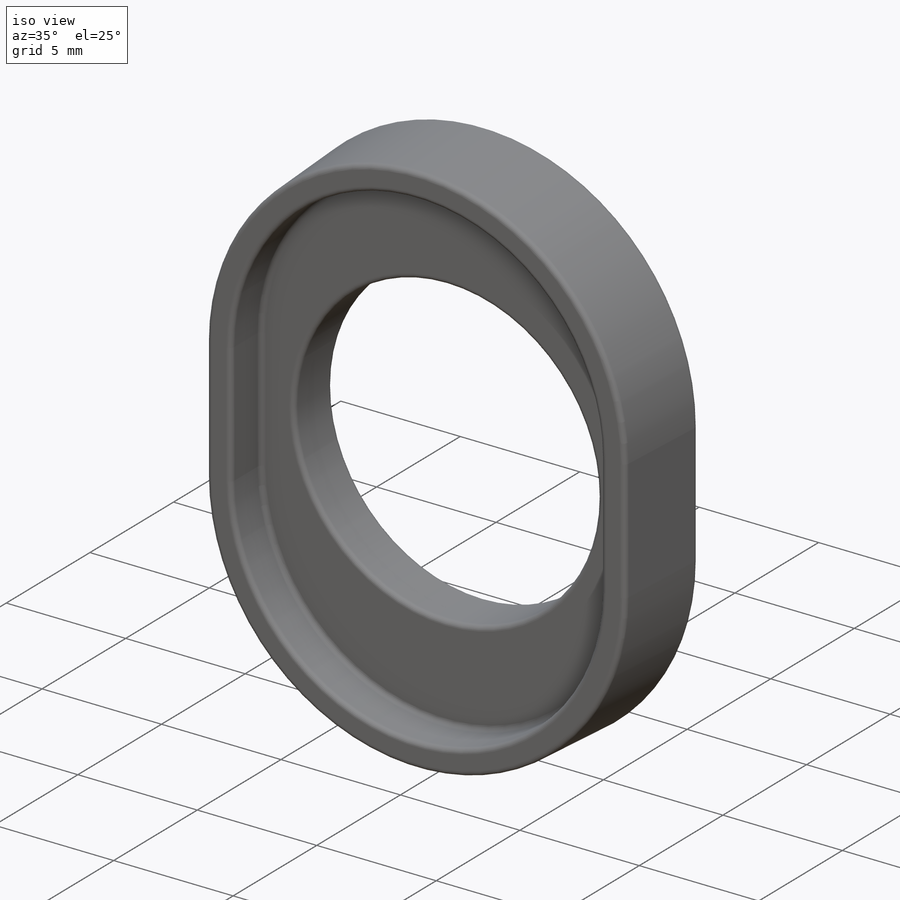
[diagram: iso view]
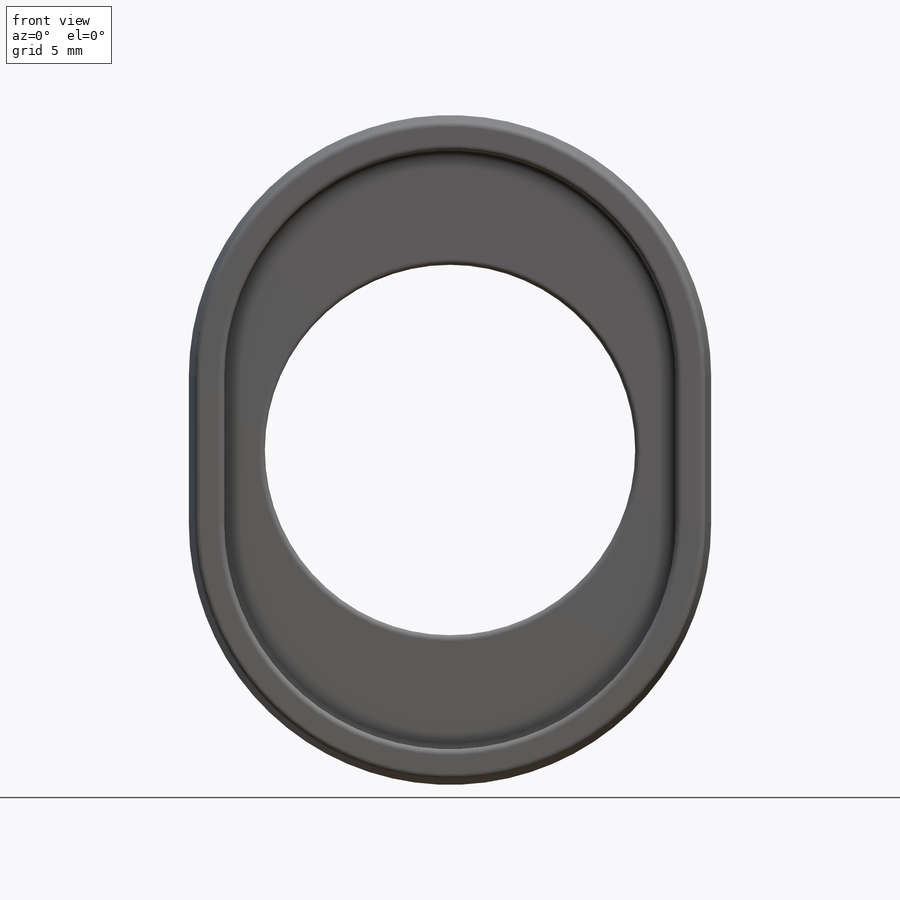
[diagram: front view]
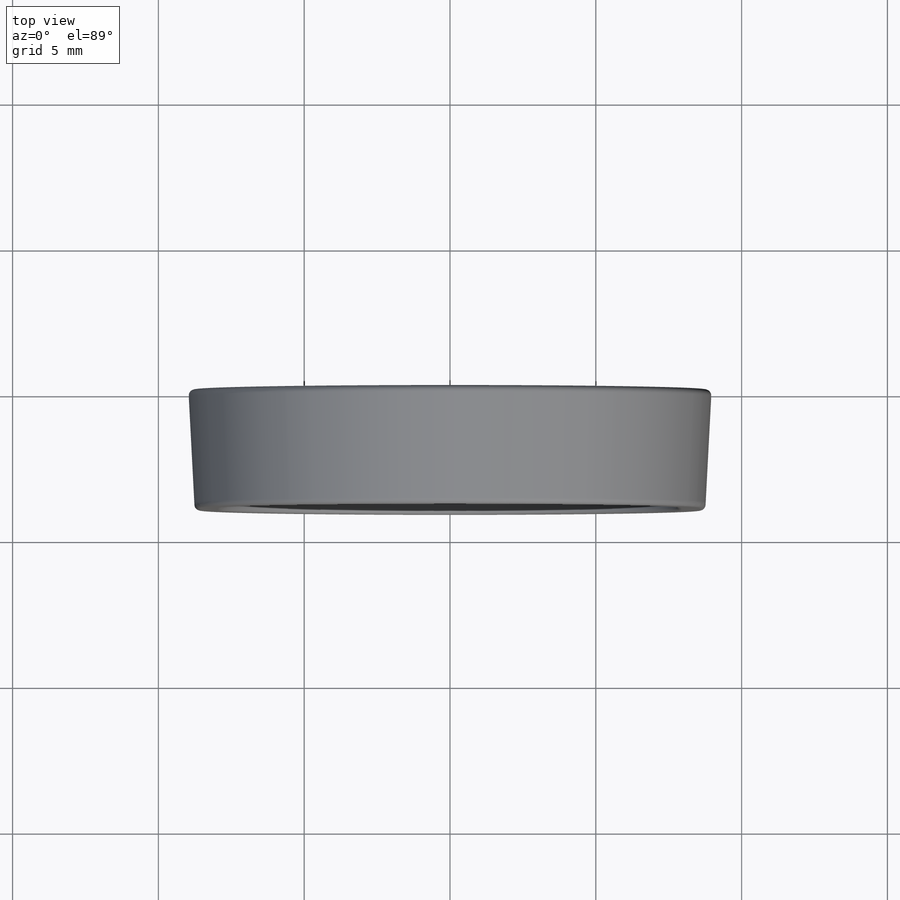
[diagram: top view]
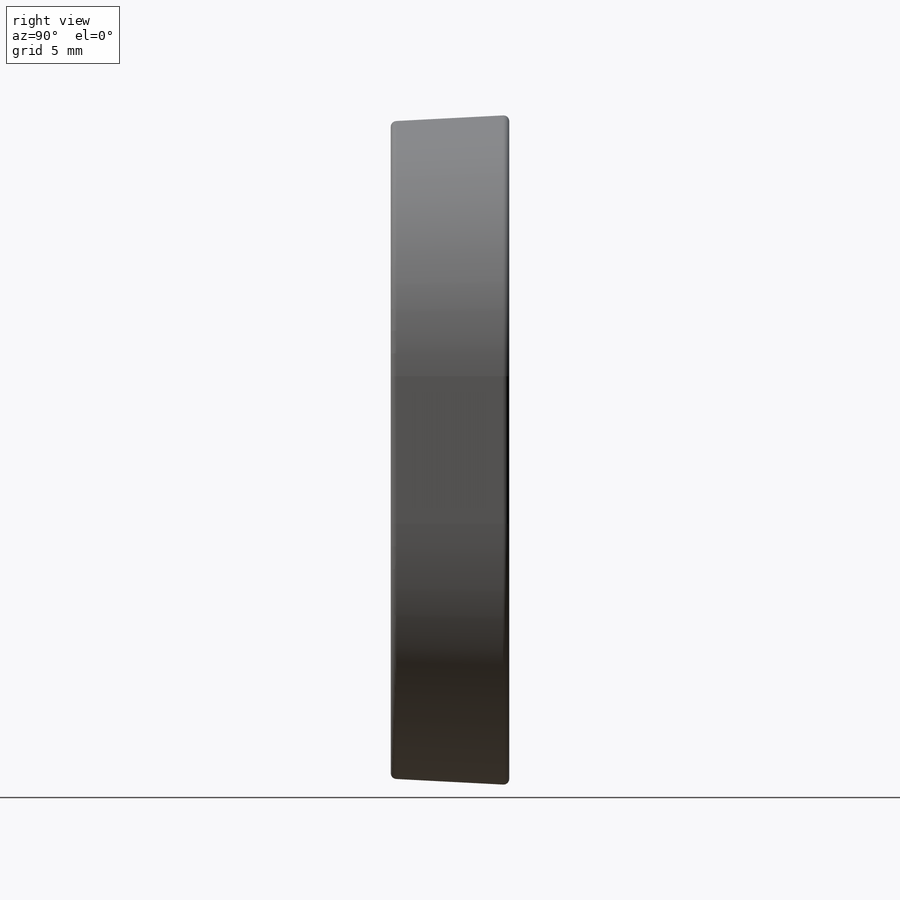
[diagram: right view]
SOLIDWORKS PART (.sldprt)
format: sldprt  version: not decoded by parser v0  size: 285,184 bytes
history: native  units: mm
features: sketch x3, cut_extrude x2, material x1, extrude x1, fillet x1 (+16 scaffold rows collapsed)
feature tree (24):
  scaffold x16  (default folders/planes/origin — collapsed)
  material  "6061-T6 (SS)"
  sketch  "Sketch1"  dims[D1=17.9324mm D2=22.987mm]
  extrude  "Extrude1"  Depth=4.064mm
  sketch  "Sketch2"  dims[D1=1.016mm]
  cut_extrude  "Extrude2"  Depth=1.778mm
  sketch  "Sketch3"  dims[D1=12.7mm]
  cut_extrude  "Extrude3"  [1 undecoded]
  fillet  "Fillet1"  Radius=0.198437mm
decode coverage: 6 of 7 modeling features carry decoded parameters
note: 1 parameter value undecoded
note: suppression state not decoded; provenance and decode notes live in map.json
